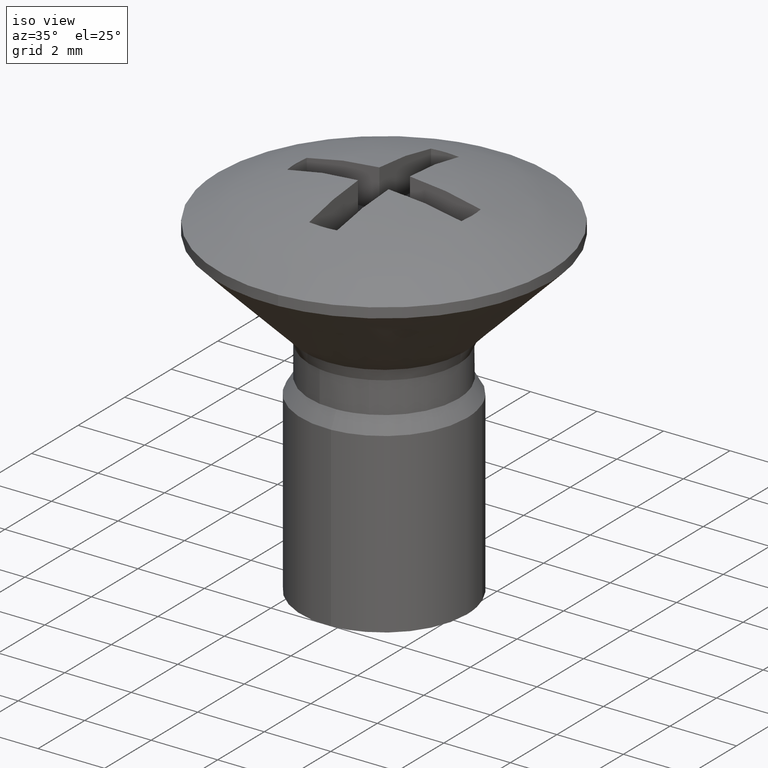
[diagram: clean part render]
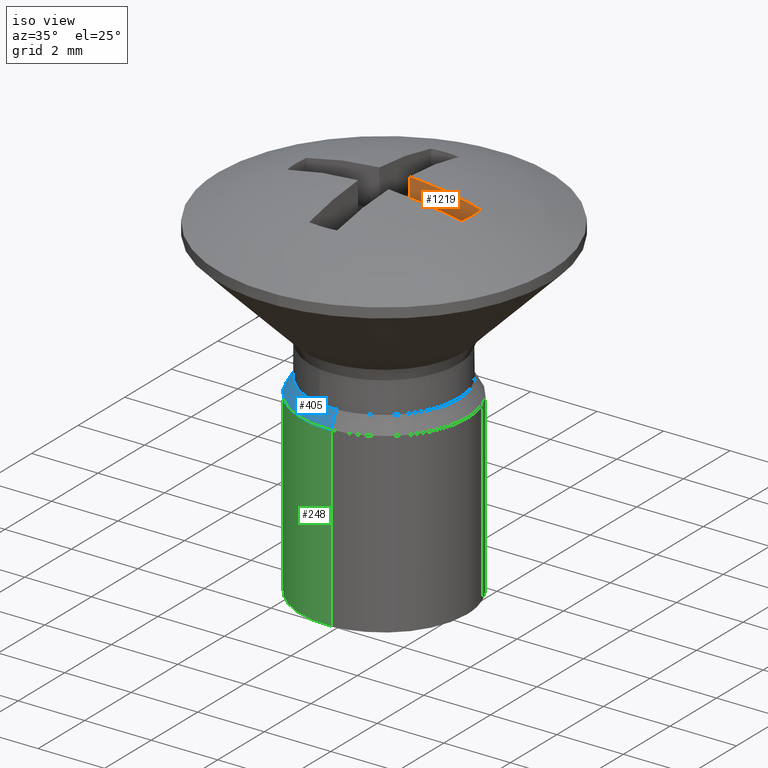
[diagram: same view with three faces highlighted in distinct colors, each labeled with its STEP entity id]
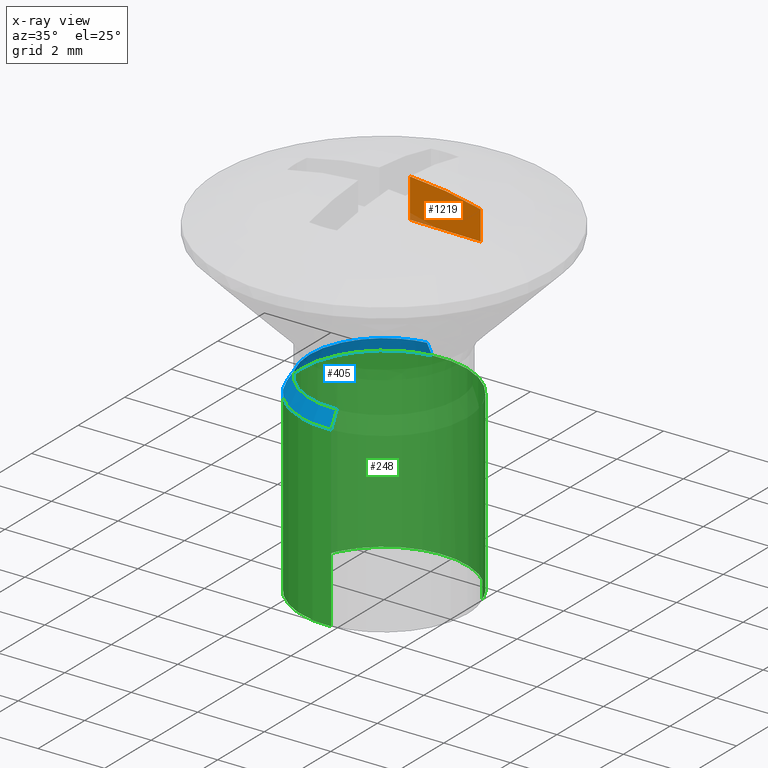
[diagram: x-ray of the same camera — body ghosted, the three highlighted faces saturated]
A machine part, iso view with three faces highlighted in distinct colors.
The next image is the same camera in x-ray (body ghosted, the three faces saturated) — at least one of them is partly hidden behind the body in this view.
Their STEP definitions:

[orange] entity #1219 — the highlighted face is a freeform B-spline surface patch.
#1124=CARTESIAN_POINT('',(2.616505333160400,0.419999811360891,0.0));
#1125=VERTEX_POINT('',#1124);
#1139=CARTESIAN_POINT('',(0.457700425241849,0.456477945823886,0.0));
#1140=VERTEX_POINT('',#1139);
#1141=CARTESIAN_POINT('',(2.616505333160400,0.419999811360891,0.0));
#1142=CARTESIAN_POINT('',(0.457700425241849,0.456477945823886,0.0));
#1143=QUASI_UNIFORM_CURVE('',1,(#1141,#1142),.UNSPECIFIED.,.F.,.U.);
#1144=EDGE_CURVE('',#1125,#1140,#1143,.T.);
#1159=CARTESIAN_POINT('',(0.457700425241849,0.456477945823886,1.181018722340090));
#1160=VERTEX_POINT('',#1159);
#1182=CARTESIAN_POINT('',(0.457700425241849,0.456477945823886,1.181018722340090));
#1183=CARTESIAN_POINT('',(0.457700425241849,0.456477945823886,0.0));
#1184=QUASI_UNIFORM_CURVE('',1,(#1182,#1183),.UNSPECIFIED.,.F.,.U.);
#1185=EDGE_CURVE('',#1160,#1140,#1184,.T.);
#1190=CARTESIAN_POINT('',(0.349868124192368,0.458300023649793,-0.058991882891844));
#1191=CARTESIAN_POINT('',(2.724337693777840,0.418177831051388,-0.058991882891844));
#1192=CARTESIAN_POINT('',(0.349868124192368,0.458300023649793,1.240010636909325));
#1193=CARTESIAN_POINT('',(2.724337693777840,0.418177831051388,1.240010636909325));
#1194=B_SPLINE_SURFACE_WITH_KNOTS('',1,1,((#1190,#1192),(#1191,#1193)),.UNSPECIFIED.,.F.,.F.,.U.,(2,2),(2,2),(0.0,2.374808524329134),(0.041708334948495,0.958291687403247),.UNSPECIFIED.);
#1195=CARTESIAN_POINT('',(2.616505334824700,0.419999909855716,0.876530512738187));
#1196=VERTEX_POINT('',#1195);
#1197=CARTESIAN_POINT('',(2.616505334824699,0.419999909855716,0.876530512738186));
#1198=CARTESIAN_POINT('',(1.552255067120040,0.437982896355393,1.136233475937278));
#1199=CARTESIAN_POINT('',(0.457700425241849,0.456477945823886,1.181018722340088));
#1207=(BOUNDED_CURVE()B_SPLINE_CURVE(2,(#1197,#1198,#1199),.UNSPECIFIED.,.F.,.U.)CURVE()GEOMETRIC_REPRESENTATION_ITEM()QUASI_UNIFORM_CURVE()RATIONAL_B_SPLINE_CURVE((1.0,0.995082425710304,1.0))REPRESENTATION_ITEM(''));
#1208=EDGE_CURVE('',#1196,#1160,#1207,.T.);
#1209=ORIENTED_EDGE('',*,*,#1208,.T.);
#1210=ORIENTED_EDGE('',*,*,#1185,.T.);
#1211=ORIENTED_EDGE('',*,*,#1144,.F.);
#1212=CARTESIAN_POINT('',(2.616505334824700,0.419999909855716,0.876530512738187));
#1213=CARTESIAN_POINT('',(2.616505333160400,0.419999811360891,0.0));
#1214=QUASI_UNIFORM_CURVE('',1,(#1212,#1213),.UNSPECIFIED.,.F.,.U.);
#1215=EDGE_CURVE('',#1196,#1125,#1214,.T.);
#1216=ORIENTED_EDGE('',*,*,#1215,.F.);
#1217=EDGE_LOOP('',(#1209,#1210,#1211,#1216));
#1218=FACE_OUTER_BOUND('',#1217,.T.);
#1219=ADVANCED_FACE('',(#1218),#1194,.T.);

[blue] entity #405 — the highlighted face is a freeform B-spline surface patch.
#83=CARTESIAN_POINT('',(0.152621348842083,-2.495336996054866,-4.660000000001714));
#84=VERTEX_POINT('',#83);
#165=CARTESIAN_POINT('',(-0.295085586648734,2.482523815909043,-4.660000000001189));
#166=VERTEX_POINT('',#165);
#216=CARTESIAN_POINT('',(-2.500000000000000,0.0,-4.660000000000000));
#217=VERTEX_POINT('',#216);
#218=CARTESIAN_POINT('',(0.152621348842083,-2.495336996054866,-4.660000000001715));
#219=CARTESIAN_POINT('',(0.076381908256320,-2.500000000000000,-4.660000000000000));
#220=CARTESIAN_POINT('',(0.0,-2.500000000000000,-4.660000000000000));
#221=CARTESIAN_POINT('',(-2.500000000000000,-2.500000000000000,-4.660000000000000));
#222=CARTESIAN_POINT('',(-2.500000000000000,0.0,-4.660000000000000));
#230=(BOUNDED_CURVE()B_SPLINE_CURVE(2,(#218,#219,#220,#221,#222),.UNSPECIFIED.,.F.,.U.)B_SPLINE_CURVE_WITH_KNOTS((3,2,3),(0.739332962240610,0.750000000000000,1.0),.UNSPECIFIED.)CURVE()GEOMETRIC_REPRESENTATION_ITEM()RATIONAL_B_SPLINE_CURVE((0.976072041670291,0.987502787901791,1.0,0.707106781186548,1.0))REPRESENTATION_ITEM(''));
#231=EDGE_CURVE('',#84,#217,#230,.T.);
#233=CARTESIAN_POINT('',(-2.500000000000000,0.0,-4.660000000000000));
#234=CARTESIAN_POINT('',(-2.499999999999999,2.220436314866244,-4.659999999999999));
#235=CARTESIAN_POINT('',(-0.295085586648734,2.482523815909043,-4.660000000001189));
#243=(BOUNDED_CURVE()B_SPLINE_CURVE(2,(#233,#234,#235),.UNSPECIFIED.,.F.,.U.)B_SPLINE_CURVE_WITH_KNOTS((3,3),(0.0,0.229562473514724),.UNSPECIFIED.)CURVE()GEOMETRIC_REPRESENTATION_ITEM()RATIONAL_B_SPLINE_CURVE((1.0,0.731050832853978,0.956026754186082))REPRESENTATION_ITEM(''));
#244=EDGE_CURVE('',#217,#166,#243,.T.);
#272=CARTESIAN_POINT('',(-0.264396685631568,2.224341339054605,-4.209600000000075));
#273=VERTEX_POINT('',#272);
#274=CARTESIAN_POINT('',(-0.264396685631568,2.224341339054605,-4.209600000000075));
#275=CARTESIAN_POINT('',(-0.295085586648734,2.482523815909043,-4.660000000001189));
#276=QUASI_UNIFORM_CURVE('',1,(#274,#275),.UNSPECIFIED.,.F.,.U.);
#277=EDGE_CURVE('',#273,#166,#276,.T.);
#311=CARTESIAN_POINT('',(0.136748728562380,-2.235821948465154,-4.209600000000753));
#312=VERTEX_POINT('',#311);
#326=CARTESIAN_POINT('',(0.136748728562380,-2.235821948465154,-4.209600000000753));
#327=CARTESIAN_POINT('',(0.152621348842083,-2.495336996054866,-4.660000000001714));
#328=QUASI_UNIFORM_CURVE('',1,(#326,#327),.UNSPECIFIED.,.F.,.U.);
#329=EDGE_CURVE('',#312,#84,#328,.T.);
#336=CARTESIAN_POINT('',(0.136351913051103,-2.229334072275239,-4.198340000000000));
#337=CARTESIAN_POINT('',(-2.092982159224136,-2.365685985326342,-4.198340000000000));
#338=CARTESIAN_POINT('',(-2.229334072275239,-0.136351913051103,-4.198340000000000));
#339=CARTESIAN_POINT('',(-2.358098470402100,1.968927386790025,-4.198340000000000));
#340=CARTESIAN_POINT('',(-0.263629463105870,2.217886777133248,-4.198340000000000));
#341=CARTESIAN_POINT('',(0.153028084731793,-2.501987069149149,-4.671541500000001));
#342=CARTESIAN_POINT('',(-2.348958984417357,-2.655015153880941,-4.671541500000001));
#343=CARTESIAN_POINT('',(-2.501987069149149,-0.153028084731793,-4.671541500000001));
#344=CARTESIAN_POINT('',(-2.646499667367046,2.209732010606468,-4.671541500000001));
#345=CARTESIAN_POINT('',(-0.295871989730296,2.489139741878561,-4.671541500000002));
#353=(BOUNDED_SURFACE()B_SPLINE_SURFACE(2,1,((#336,#341),(#337,#342),(#338,#343),(#339,#344),(#340,#345)),.UNSPECIFIED.,.F.,.F.,.U.)B_SPLINE_SURFACE_WITH_KNOTS((3,2,3),(2,2),(0.0,4.153174415168187,8.140221853729647),(0.0,1.0),.UNSPECIFIED.)GEOMETRIC_REPRESENTATION_ITEM()RATIONAL_B_SPLINE_SURFACE(((1.0,1.0),(0.707106781186548,0.707106781186548),(1.0,1.0),(0.718822509939086,0.718822509939086),(0.977505800795127,0.977505800795127)))REPRESENTATION_ITEM('')SURFACE());
#354=ORIENTED_EDGE('',*,*,#244,.F.);
#355=ORIENTED_EDGE('',*,*,#231,.F.);
#356=ORIENTED_EDGE('',*,*,#329,.F.);
#357=CARTESIAN_POINT('',(-0.390071168557974,-2.205775256788373,-4.209600000000000));
#358=VERTEX_POINT('',#357);
#359=CARTESIAN_POINT('',(0.136748728562380,-2.235821948465155,-4.209600000000753));
#360=CARTESIAN_POINT('',(0.068438189793125,-2.240000000000000,-4.209600000000000));
#361=CARTESIAN_POINT('',(0.0,-2.240000000000000,-4.209600000000000));
#362=CARTESIAN_POINT('',(-0.196537019330591,-2.240000000000000,-4.209600000000000));
#363=CARTESIAN_POINT('',(-0.390071168557974,-2.205775256788374,-4.209600000000000));
#371=(BOUNDED_CURVE()B_SPLINE_CURVE(2,(#359,#360,#361,#362,#363),.UNSPECIFIED.,.F.,.U.)B_SPLINE_CURVE_WITH_KNOTS((3,2,3),(0.739332962241309,0.750000000000000,0.779932834130859),.UNSPECIFIED.)CURVE()GEOMETRIC_REPRESENTATION_ITEM()RATIONAL_B_SPLINE_CURVE((0.976072041671788,0.987502787902609,1.0,0.964931503452814,0.938260602828552))REPRESENTATION_ITEM(''));
#372=EDGE_CURVE('',#312,#358,#371,.T.);
#373=ORIENTED_EDGE('',*,*,#372,.T.);
#374=CARTESIAN_POINT('',(-2.240000000000000,0.0,-4.209600000000000));
#375=VERTEX_POINT('',#374);
#376=CARTESIAN_POINT('',(-0.390071168557974,-2.205775256788373,-4.209600000000000));
#377=CARTESIAN_POINT('',(-2.239999999999999,-1.878632272107674,-4.209600000000001));
#378=CARTESIAN_POINT('',(-2.240000000000000,0.0,-4.209600000000000));
#386=(BOUNDED_CURVE()B_SPLINE_CURVE(2,(#376,#377,#378),.UNSPECIFIED.,.F.,.U.)B_SPLINE_CURVE_WITH_KNOTS((3,3),(0.779932834130859,1.0),.UNSPECIFIED.)CURVE()GEOMETRIC_REPRESENTATION_ITEM()RATIONAL_B_SPLINE_CURVE((0.938260602828553,0.742175277733733,1.0))REPRESENTATION_ITEM(''));
#387=EDGE_CURVE('',#358,#375,#386,.T.);
#388=ORIENTED_EDGE('',*,*,#387,.T.);
#389=CARTESIAN_POINT('',(-2.240000000000000,0.0,-4.209600000000000));
#390=CARTESIAN_POINT('',(-2.239999999999999,1.989510938130299,-4.209600000000001));
#391=CARTESIAN_POINT('',(-0.264396685631569,2.224341339054605,-4.209600000000075));
#399=(BOUNDED_CURVE()B_SPLINE_CURVE(2,(#389,#390,#391),.UNSPECIFIED.,.F.,.U.)B_SPLINE_CURVE_WITH_KNOTS((3,3),(0.0,0.229562473515580),.UNSPECIFIED.)CURVE()GEOMETRIC_REPRESENTATION_ITEM()RATIONAL_B_SPLINE_CURVE((1.0,0.731050832852976,0.956026754187759))REPRESENTATION_ITEM(''));
#400=EDGE_CURVE('',#375,#273,#399,.T.);
#401=ORIENTED_EDGE('',*,*,#400,.T.);
#402=ORIENTED_EDGE('',*,*,#277,.T.);
#403=EDGE_LOOP('',(#354,#355,#356,#373,#388,#401,#402));
#404=FACE_OUTER_BOUND('',#403,.T.);
#405=ADVANCED_FACE('',(#404),#353,.T.);

[green] entity #248 — the highlighted face is a freeform B-spline surface patch.
#66=CARTESIAN_POINT('',(2.340359387428814,0.879043763229259,-4.660000000000002));
#67=VERTEX_POINT('',#66);
#83=CARTESIAN_POINT('',(0.152621348842083,-2.495336996054866,-4.660000000001714));
#84=VERTEX_POINT('',#83);
#98=CARTESIAN_POINT('',(0.152618192138784,-2.495337189122601,-10.0));
#99=VERTEX_POINT('',#98);
#100=CARTESIAN_POINT('',(0.152621348842083,-2.495336996054866,-4.660000000001714));
#101=CARTESIAN_POINT('',(0.152618192138784,-2.495337189122601,-10.0));
#102=QUASI_UNIFORM_CURVE('',1,(#100,#101),.UNSPECIFIED.,.F.,.U.);
#103=EDGE_CURVE('',#84,#99,#102,.T.);
#120=CARTESIAN_POINT('',(2.340359024791248,0.879044728712998,-10.0));
#121=VERTEX_POINT('',#120);
#135=CARTESIAN_POINT('',(2.340359387428814,0.879043763229259,-4.660000000000002));
#136=CARTESIAN_POINT('',(2.340359024791248,0.879044728712998,-10.0));
#137=QUASI_UNIFORM_CURVE('',1,(#135,#136),.UNSPECIFIED.,.F.,.U.);
#138=EDGE_CURVE('',#67,#121,#137,.T.);
#143=CARTESIAN_POINT('',(0.152621348837143,-2.495336996054667,-4.526499999999999));
#144=CARTESIAN_POINT('',(-2.342715647217524,-2.647958344891809,-4.526500000000000));
#145=CARTESIAN_POINT('',(-2.495336996054667,-0.152621348837143,-4.526499999999999));
#146=CARTESIAN_POINT('',(-2.647958344891809,2.342715647217524,-4.526500000000000));
#147=CARTESIAN_POINT('',(-0.152621348837143,2.495336996054667,-4.526499999999999));
#148=CARTESIAN_POINT('',(1.690923954507663,2.608093057173355,-4.526499999999999));
#149=CARTESIAN_POINT('',(2.340358946941643,0.879044935978930,-4.526499999999998));
#150=CARTESIAN_POINT('',(0.152621348837143,-2.495336996054667,-10.136837500000000));
#151=CARTESIAN_POINT('',(-2.342715647217524,-2.647958344891809,-10.136837500000002));
#152=CARTESIAN_POINT('',(-2.495336996054667,-0.152621348837143,-10.136837500000000));
#153=CARTESIAN_POINT('',(-2.647958344891809,2.342715647217524,-10.136837500000002));
#154=CARTESIAN_POINT('',(-0.152621348837143,2.495336996054667,-10.136837500000000));
#155=CARTESIAN_POINT('',(1.690923954507663,2.608093057173355,-10.136837500000004));
#156=CARTESIAN_POINT('',(2.340358946941643,0.879044935978930,-10.136837500000000));
#164=(BOUNDED_SURFACE()B_SPLINE_SURFACE(2,1,((#143,#150),(#144,#151),(#145,#152),(#146,#153),(#147,#154),(#148,#155),(#149,#156)),.UNSPECIFIED.,.F.,.F.,.U.)B_SPLINE_SURFACE_WITH_KNOTS((3,2,2,3),(2,2),(0.0,4.142135623730949,8.284271247461899,11.597979746446660),(0.0,5.610337500000004),.UNSPECIFIED.)GEOMETRIC_REPRESENTATION_ITEM()RATIONAL_B_SPLINE_SURFACE(((1.0,1.0),(0.707106781186548,0.707106781186548),(1.0,1.0),(0.707106781186548,0.707106781186548),(1.0,1.0),(0.765685424949238,0.765685424949238),(0.906274169979695,0.906274169979695)))REPRESENTATION_ITEM('')SURFACE());
#165=CARTESIAN_POINT('',(-0.295085586648734,2.482523815909043,-4.660000000001189));
#166=VERTEX_POINT('',#165);
#167=CARTESIAN_POINT('',(-0.295085586648734,2.482523815909043,-4.660000000001190));
#168=CARTESIAN_POINT('',(-0.148060299136604,2.500000000000000,-4.660000000000001));
#169=CARTESIAN_POINT('',(0.0,2.500000000000000,-4.660000000000000));
#170=CARTESIAN_POINT('',(1.731524916084851,2.500000000000000,-4.660000000000000));
#171=CARTESIAN_POINT('',(2.340359387428814,0.879043763229259,-4.660000000000002));
#179=(BOUNDED_CURVE()B_SPLINE_CURVE(2,(#167,#168,#169,#170,#171),.UNSPECIFIED.,.F.,.U.)B_SPLINE_CURVE_WITH_KNOTS((3,2,3),(0.229562473514724,0.250000000000000,0.440284250047310),.UNSPECIFIED.)CURVE()GEOMETRIC_REPRESENTATION_ITEM()RATIONAL_B_SPLINE_CURVE((0.956026754186083,0.976055948332570,1.0,0.777068134056558,0.893499651494678))REPRESENTATION_ITEM(''));
#180=EDGE_CURVE('',#166,#67,#179,.T.);
#181=ORIENTED_EDGE('',*,*,#180,.T.);
#182=ORIENTED_EDGE('',*,*,#138,.T.);
#183=CARTESIAN_POINT('',(-2.500000000000000,0.0,-10.0));
#184=VERTEX_POINT('',#183);
#185=CARTESIAN_POINT('',(-2.500000000000000,0.0,-10.0));
#186=CARTESIAN_POINT('',(-2.500000000000000,2.500000000000000,-10.000000000000002));
#187=CARTESIAN_POINT('',(0.0,2.500000000000000,-10.0));
#188=CARTESIAN_POINT('',(1.731524316849338,2.500000000000000,-10.0));
#189=CARTESIAN_POINT('',(2.340359024791248,0.879044728712998,-10.0));
#197=(BOUNDED_CURVE()B_SPLINE_CURVE(2,(#185,#186,#187,#188,#189),.UNSPECIFIED.,.F.,.U.)B_SPLINE_CURVE_WITH_KNOTS((3,2,3),(0.0,0.250000000000000,0.440284198875500),.UNSPECIFIED.)CURVE()GEOMETRIC_REPRESENTATION_ITEM()RATIONAL_B_SPLINE_CURVE((1.0,0.707106781186548,1.0,0.777068194008062,0.893499588872479))REPRESENTATION_ITEM(''));
#198=EDGE_CURVE('',#184,#121,#197,.T.);
#199=ORIENTED_EDGE('',*,*,#198,.F.);
#200=CARTESIAN_POINT('',(0.152618192138784,-2.495337189122601,-10.0));
#201=CARTESIAN_POINT('',(0.076380325471908,-2.500000000000000,-10.0));
#202=CARTESIAN_POINT('',(0.0,-2.500000000000000,-10.0));
#203=CARTESIAN_POINT('',(-2.500000000000000,-2.500000000000000,-10.000000000000002));
#204=CARTESIAN_POINT('',(-2.500000000000000,0.0,-10.0));
#212=(BOUNDED_CURVE()B_SPLINE_CURVE(2,(#200,#201,#202,#203,#204),.UNSPECIFIED.,.F.,.U.)B_SPLINE_CURVE_WITH_KNOTS((3,2,3),(0.739333180520404,0.750000000000000,1.0),.UNSPECIFIED.)CURVE()GEOMETRIC_REPRESENTATION_ITEM()RATIONAL_B_SPLINE_CURVE((0.976072509485888,0.987503043632477,1.0,0.707106781186548,1.0))REPRESENTATION_ITEM(''));
#213=EDGE_CURVE('',#99,#184,#212,.T.);
#214=ORIENTED_EDGE('',*,*,#213,.F.);
#215=ORIENTED_EDGE('',*,*,#103,.F.);
#216=CARTESIAN_POINT('',(-2.500000000000000,0.0,-4.660000000000000));
#217=VERTEX_POINT('',#216);
#218=CARTESIAN_POINT('',(0.152621348842083,-2.495336996054866,-4.660000000001715));
#219=CARTESIAN_POINT('',(0.076381908256320,-2.500000000000000,-4.660000000000000));
#220=CARTESIAN_POINT('',(0.0,-2.500000000000000,-4.660000000000000));
#221=CARTESIAN_POINT('',(-2.500000000000000,-2.500000000000000,-4.660000000000000));
#222=CARTESIAN_POINT('',(-2.500000000000000,0.0,-4.660000000000000));
#230=(BOUNDED_CURVE()B_SPLINE_CURVE(2,(#218,#219,#220,#221,#222),.UNSPECIFIED.,.F.,.U.)B_SPLINE_CURVE_WITH_KNOTS((3,2,3),(0.739332962240610,0.750000000000000,1.0),.UNSPECIFIED.)CURVE()GEOMETRIC_REPRESENTATION_ITEM()RATIONAL_B_SPLINE_CURVE((0.976072041670291,0.987502787901791,1.0,0.707106781186548,1.0))REPRESENTATION_ITEM(''));
#231=EDGE_CURVE('',#84,#217,#230,.T.);
#232=ORIENTED_EDGE('',*,*,#231,.T.);
#233=CARTESIAN_POINT('',(-2.500000000000000,0.0,-4.660000000000000));
#234=CARTESIAN_POINT('',(-2.499999999999999,2.220436314866244,-4.659999999999999));
#235=CARTESIAN_POINT('',(-0.295085586648734,2.482523815909043,-4.660000000001189));
#243=(BOUNDED_CURVE()B_SPLINE_CURVE(2,(#233,#234,#235),.UNSPECIFIED.,.F.,.U.)B_SPLINE_CURVE_WITH_KNOTS((3,3),(0.0,0.229562473514724),.UNSPECIFIED.)CURVE()GEOMETRIC_REPRESENTATION_ITEM()RATIONAL_B_SPLINE_CURVE((1.0,0.731050832853978,0.956026754186082))REPRESENTATION_ITEM(''));
#244=EDGE_CURVE('',#217,#166,#243,.T.);
#245=ORIENTED_EDGE('',*,*,#244,.T.);
#246=EDGE_LOOP('',(#181,#182,#199,#214,#215,#232,#245));
#247=FACE_OUTER_BOUND('',#246,.T.);
#248=ADVANCED_FACE('',(#247),#164,.T.);